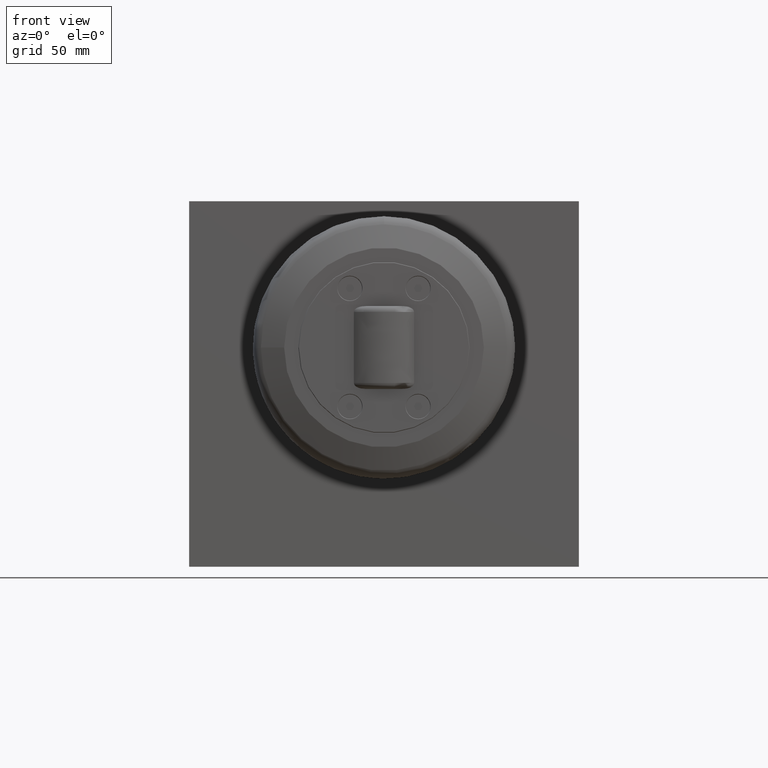
[diagram: clean part render]
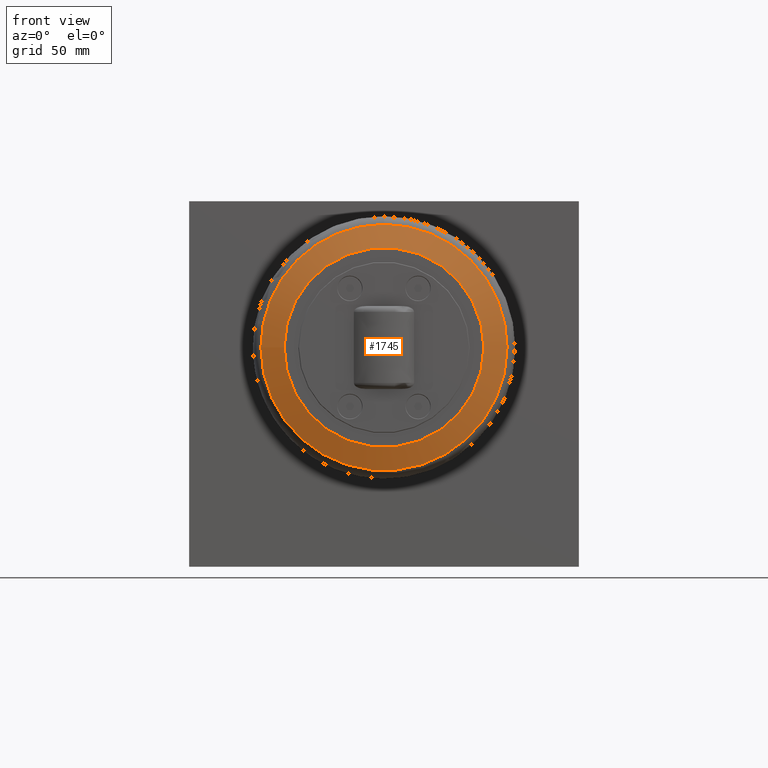
[diagram: same view with one face highlighted and labeled with its STEP entity id]
A machine part, front view. The second image highlights one B-rep face of the part: STEP entity #1745.
In plain terms, the highlighted conical surface has half-angle 70 deg.
Its self-contained STEP definition (entity closure, byte-faithful):
#21=CONICAL_SURFACE('',#1890,47.3955989657404,1.22173047639603);
#84=CIRCLE('',#1881,50.5330878125312);
#85=CIRCLE('',#1882,50.5330878125312);
#89=CIRCLE('',#1886,50.5330878125312);
#93=CIRCLE('',#1891,41.);
#94=CIRCLE('',#1892,41.);
#200=FACE_OUTER_BOUND('',#307,.T.);
#307=EDGE_LOOP('',(#1311,#1312,#1313,#1314,#1315,#1316,#1317));
#463=LINE('',#2765,#628);
#628=VECTOR('',#2215,47.3955989657404);
#784=VERTEX_POINT('',#2717);
#785=VERTEX_POINT('',#2718);
#786=VERTEX_POINT('',#2720);
#791=VERTEX_POINT('',#2761);
#792=VERTEX_POINT('',#2762);
#984=EDGE_CURVE('',#784,#785,#84,.T.);
#985=EDGE_CURVE('',#785,#786,#85,.T.);
#989=EDGE_CURVE('',#786,#784,#89,.T.);
#993=EDGE_CURVE('',#791,#792,#93,.T.);
#994=EDGE_CURVE('',#792,#791,#94,.T.);
#995=EDGE_CURVE('',#792,#785,#463,.T.);
#1311=ORIENTED_EDGE('',*,*,#993,.F.);
#1312=ORIENTED_EDGE('',*,*,#994,.F.);
#1313=ORIENTED_EDGE('',*,*,#995,.T.);
#1314=ORIENTED_EDGE('',*,*,#984,.F.);
#1315=ORIENTED_EDGE('',*,*,#989,.F.);
#1316=ORIENTED_EDGE('',*,*,#985,.F.);
#1317=ORIENTED_EDGE('',*,*,#995,.F.);
#1745=ADVANCED_FACE('',(#200),#21,.T.);
#1881=AXIS2_PLACEMENT_3D('',#2719,#2191,#2192);
#1882=AXIS2_PLACEMENT_3D('',#2721,#2193,#2194);
#1886=AXIS2_PLACEMENT_3D('',#2727,#2201,#2202);
#1890=AXIS2_PLACEMENT_3D('',#2760,#2209,#2210);
#1891=AXIS2_PLACEMENT_3D('',#2763,#2211,#2212);
#1892=AXIS2_PLACEMENT_3D('',#2764,#2213,#2214);
#2191=DIRECTION('center_axis',(-3.09617803666613E-16,1.,-9.60310883656574E-18));
#2192=DIRECTION('ref_axis',(-1.,-3.09617803666613E-16,-5.27355936696949E-16));
#2193=DIRECTION('center_axis',(-3.09617803666613E-16,1.,-9.60310883656574E-18));
#2194=DIRECTION('ref_axis',(-1.,-3.09617803666613E-16,-5.27355936696949E-16));
#2201=DIRECTION('center_axis',(-3.09617803666613E-16,1.,-9.60310883656574E-18));
#2202=DIRECTION('ref_axis',(-1.,-3.09617803666613E-16,-5.27355936696949E-16));
#2209=DIRECTION('center_axis',(-3.44201606106068E-16,1.,-9.60310883656577E-18));
#2210=DIRECTION('ref_axis',(1.,3.0441606524312E-16,5.2735593669695E-16));
#2211=DIRECTION('center_axis',(3.44201606106068E-16,-1.,9.60310883656577E-18));
#2212=DIRECTION('ref_axis',(1.,3.04416065243119E-16,5.27355936696949E-16));
#2213=DIRECTION('center_axis',(3.44201606106068E-16,-1.,9.60310883656577E-18));
#2214=DIRECTION('ref_axis',(1.,3.04416065243119E-16,5.27355936696949E-16));
#2215=DIRECTION('',(-0.93969262078591,0.342020143325665,-6.13916094925204E-16));
#2717=CARTESIAN_POINT('',(130.533087812531,-47.4302397955927,90.));
#2718=CARTESIAN_POINT('',(29.4669121874688,-47.4302397955928,89.9999999999999));
#2719=CARTESIAN_POINT('Origin',(80.,-47.4302397955928,90.));
#2720=CARTESIAN_POINT('',(80.,-47.4302397955928,140.533087812531));
#2721=CARTESIAN_POINT('Origin',(80.,-47.4302397955928,90.));
#2727=CARTESIAN_POINT('Origin',(80.,-47.4302397955928,90.));
#2760=CARTESIAN_POINT('Origin',(80.,-48.5721923461668,90.));
#2761=CARTESIAN_POINT('',(121.,-50.9,90.));
#2762=CARTESIAN_POINT('',(39.,-50.9,89.9999999999999));
#2763=CARTESIAN_POINT('Origin',(80.,-50.9,90.));
#2764=CARTESIAN_POINT('Origin',(80.,-50.9,90.));
#2765=CARTESIAN_POINT('',(32.6044010342596,-48.5721923461668,89.9999999999999));